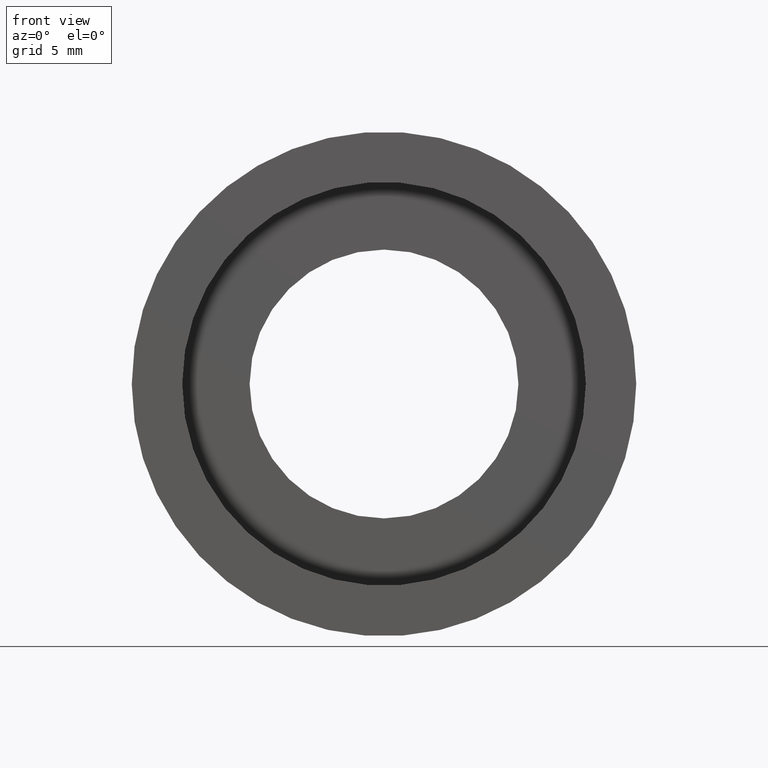
[diagram: clean part render]
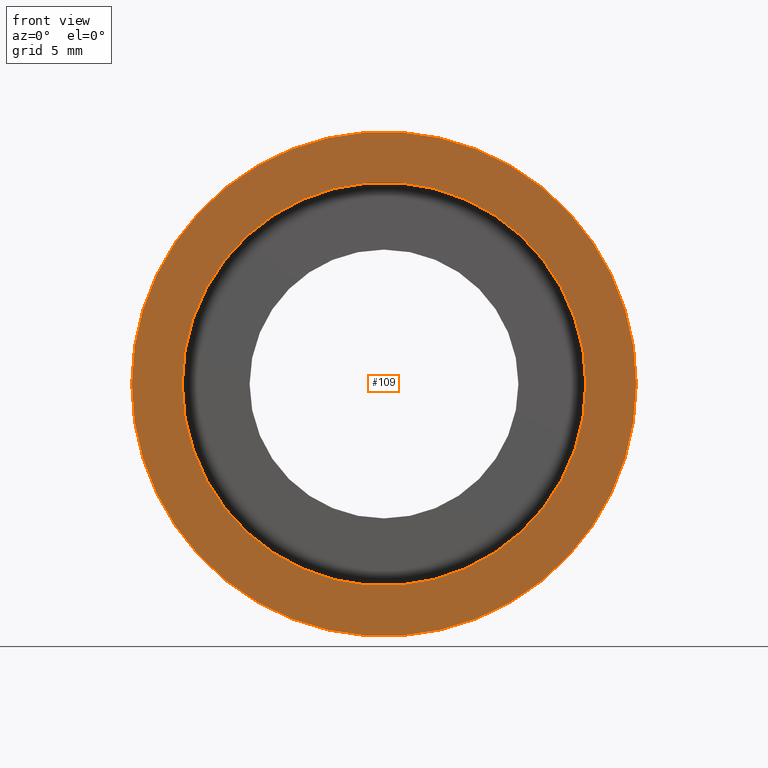
[diagram: same view with one face highlighted and labeled with its STEP entity id]
A machine part, front view. The second image highlights one B-rep face of the part: STEP entity #109.
In plain terms, the highlighted planar face has unit normal (-0, 1, 0).
Its self-contained STEP definition (entity closure, byte-faithful):
#11 = AXIS2_PLACEMENT_3D ( 'NONE', #204, #517, #338 ) ;
#18 = EDGE_CURVE ( 'NONE', #165, #581, #170, .T. ) ;
#38 = CARTESIAN_POINT ( 'NONE',  ( 19.05000000000000400, -1.136494799577910300E-015, 2.332952152375708400E-015 ) ) ;
#48 = ORIENTED_EDGE ( 'NONE', *, *, #18, .T. ) ;
#51 = EDGE_LOOP ( 'NONE', ( #274, #567 ) ) ;
#53 = CARTESIAN_POINT ( 'NONE',  ( 2.067940818438636500E-015, -3.469446951953614200E-015, 0.0000000000000000000 ) ) ;
#61 = DIRECTION ( 'NONE',  ( -1.224646799147351000E-016, 1.000000000000000000, -0.0000000000000000000 ) ) ;
#93 = AXIS2_PLACEMENT_3D ( 'NONE', #179, #318, #462 ) ;
#95 = DIRECTION ( 'NONE',  ( -1.224646799147351000E-016, 1.000000000000000000, -0.0000000000000000000 ) ) ;
#103 = EDGE_LOOP ( 'NONE', ( #331, #48 ) ) ;
#109 = ADVANCED_FACE ( 'NONE', ( #619, #155 ), #152, .F. ) ;
#152 = PLANE ( 'NONE',  #11 ) ;
#155 = FACE_BOUND ( 'NONE', #103, .T. ) ;
#165 = VERTEX_POINT ( 'NONE', #323 ) ;
#170 = CIRCLE ( 'NONE', #220, 15.24000000000000000 ) ;
#179 = CARTESIAN_POINT ( 'NONE',  ( 2.067940818438636500E-015, -3.469446951953614200E-015, 0.0000000000000000000 ) ) ;
#195 = CIRCLE ( 'NONE', #437, 19.05000000000000100 ) ;
#204 = CARTESIAN_POINT ( 'NONE',  ( 19.05000000000000400, -4.336808689942023700E-016, 0.0000000000000000000 ) ) ;
#220 = AXIS2_PLACEMENT_3D ( 'NONE', #53, #61, #246 ) ;
#225 = DIRECTION ( 'NONE',  ( -1.000000000000000000, -1.224646799147350700E-016, 0.0000000000000000000 ) ) ;
#231 = EDGE_CURVE ( 'NONE', #581, #165, #352, .T. ) ;
#246 = DIRECTION ( 'NONE',  ( -1.000000000000000000, -1.224646799147350700E-016, 0.0000000000000000000 ) ) ;
#274 = ORIENTED_EDGE ( 'NONE', *, *, #417, .F. ) ;
#306 = DIRECTION ( 'NONE',  ( -1.224646799147351000E-016, 1.000000000000000000, -0.0000000000000000000 ) ) ;
#316 = CIRCLE ( 'NONE', #93, 19.05000000000000100 ) ;
#318 = DIRECTION ( 'NONE',  ( -1.224646799147351000E-016, 1.000000000000000000, -0.0000000000000000000 ) ) ;
#323 = CARTESIAN_POINT ( 'NONE',  ( 15.24000000000000400, -1.603085230053050900E-015, 1.866361721900566200E-015 ) ) ;
#330 = CARTESIAN_POINT ( 'NONE',  ( -19.04999999999999700, -5.802399104329318300E-015, 0.0000000000000000000 ) ) ;
#331 = ORIENTED_EDGE ( 'NONE', *, *, #231, .T. ) ;
#338 = DIRECTION ( 'NONE',  ( -1.000000000000000000, -1.224646799147351000E-016, 0.0000000000000000000 ) ) ;
#352 = CIRCLE ( 'NONE', #354, 15.24000000000000000 ) ;
#354 = AXIS2_PLACEMENT_3D ( 'NONE', #485, #306, #225 ) ;
#373 = CARTESIAN_POINT ( 'NONE',  ( -15.23999999999999800, -5.335808673854176800E-015, 0.0000000000000000000 ) ) ;
#404 = EDGE_CURVE ( 'NONE', #484, #512, #195, .T. ) ;
#416 = CARTESIAN_POINT ( 'NONE',  ( 2.067940818438636500E-015, -3.469446951953614200E-015, 0.0000000000000000000 ) ) ;
#417 = EDGE_CURVE ( 'NONE', #512, #484, #316, .T. ) ;
#437 = AXIS2_PLACEMENT_3D ( 'NONE', #416, #95, #599 ) ;
#462 = DIRECTION ( 'NONE',  ( -1.000000000000000000, -1.224646799147351200E-016, 0.0000000000000000000 ) ) ;
#484 = VERTEX_POINT ( 'NONE', #38 ) ;
#485 = CARTESIAN_POINT ( 'NONE',  ( 2.067940818438636500E-015, -3.469446951953614200E-015, 0.0000000000000000000 ) ) ;
#512 = VERTEX_POINT ( 'NONE', #330 ) ;
#517 = DIRECTION ( 'NONE',  ( -1.224646799147351000E-016, 1.000000000000000000, 0.0000000000000000000 ) ) ;
#567 = ORIENTED_EDGE ( 'NONE', *, *, #404, .F. ) ;
#581 = VERTEX_POINT ( 'NONE', #373 ) ;
#599 = DIRECTION ( 'NONE',  ( -1.000000000000000000, -1.224646799147351200E-016, 0.0000000000000000000 ) ) ;
#619 = FACE_OUTER_BOUND ( 'NONE', #51, .T. ) ;